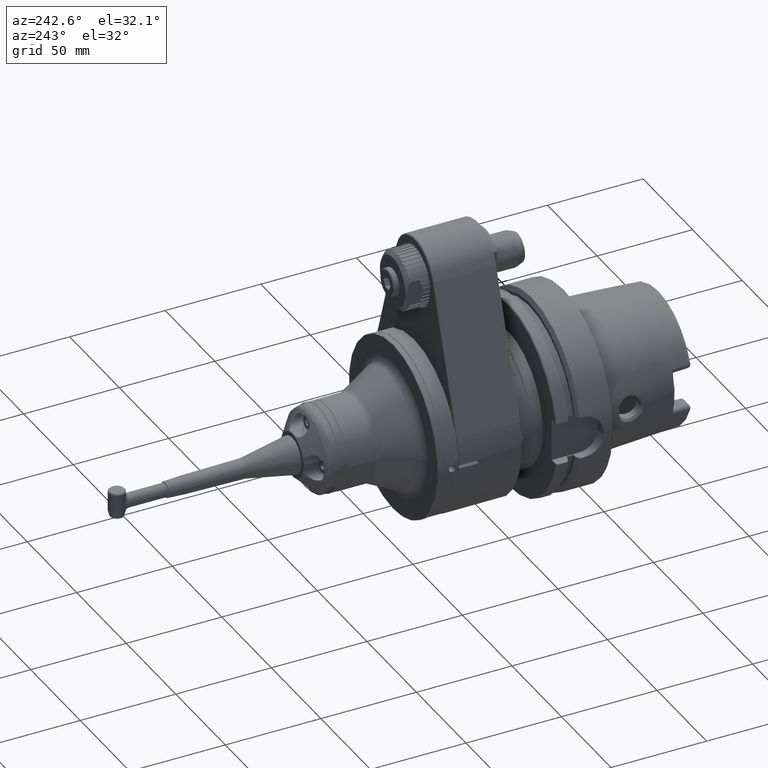
[diagram: clean part render]
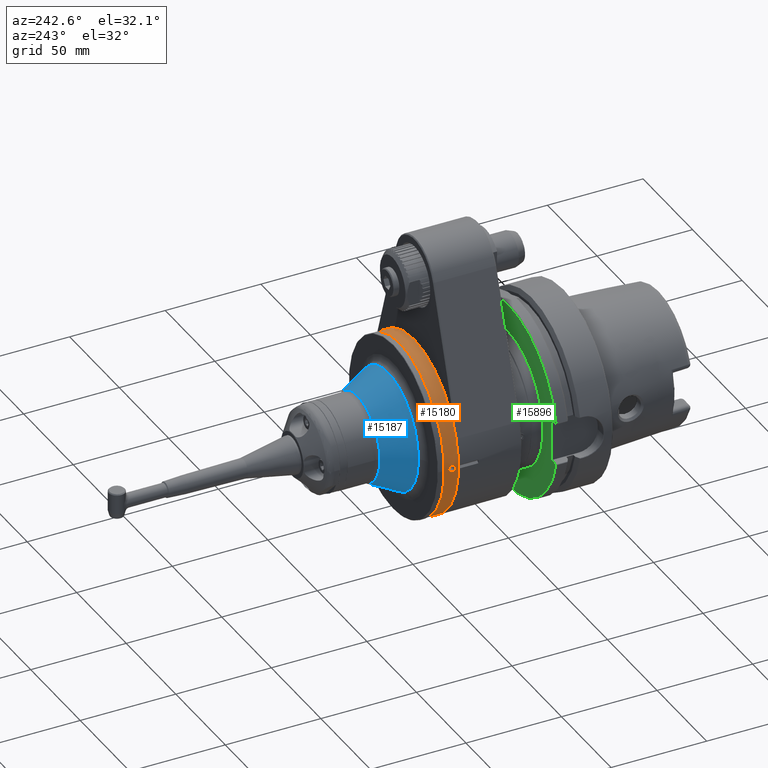
[diagram: same view with three faces highlighted in distinct colors, each labeled with its STEP entity id]
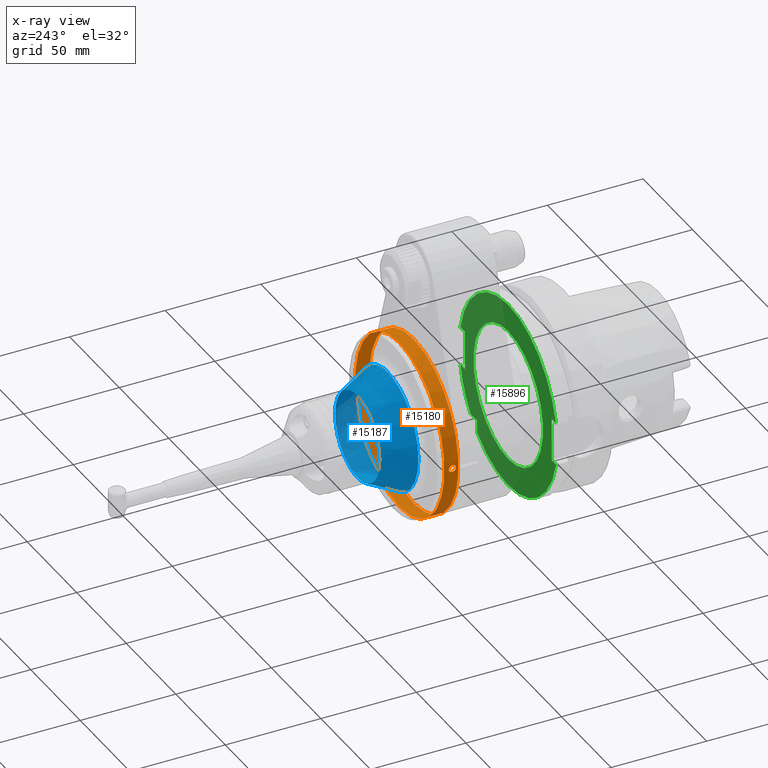
[diagram: x-ray of the same camera — body ghosted, the three highlighted faces saturated]
A machine part, auxiliary view with three faces highlighted in distinct colors.
The next image is the same camera in x-ray (body ghosted, the three faces saturated) — at least one of them is partly hidden behind the body in this view.
Their STEP definitions:

[orange] entity #15180 — the highlighted cylindrical surface (bore or boss wall) has radius 45 mm, axis along (0, -1, 0).
#96=B_SPLINE_CURVE_WITH_KNOTS('',3,(#22866,#22867,#22868,#22869,#22870,
#22871,#22872,#22873,#22874,#22875,#22876,#22877,#22878,#22879,#22880,#22881,
#22882,#22883,#22884,#22885),.UNSPECIFIED.,.F.,.F.,(4,2,2,2,2,2,2,2,2,4),
(2.95044138527654E-5,0.0363727603073256,0.0736012607345242,0.129053058891917,
0.175651368570769,0.221814558131218,0.268002092615884,0.31919449865272,
0.375343041731849,0.433055438257048),.UNSPECIFIED.);
#97=B_SPLINE_CURVE_WITH_KNOTS('',3,(#22886,#22887,#22888,#22889,#22890,
#22891,#22892,#22893,#22894,#22895,#22896,#22897,#22898,#22899,#22900,#22901,
#22902,#22903,#22904,#22905),.UNSPECIFIED.,.F.,.F.,(4,2,2,2,2,2,2,2,2,4),
(2.95044138332132E-5,0.0363727603072945,0.0736012607344489,0.12905305889174,
0.175651368570494,0.221814558130849,0.268002092615407,0.319194498652107,
0.375343041731019,0.433055438255951),.UNSPECIFIED.);
#683=LINE('',#22860,#1817);
#1817=VECTOR('',#18226,45.);
#2909=CYLINDRICAL_SURFACE('',#16234,45.);
#3129=FACE_BOUND('',#4223,.T.);
#3287=FACE_OUTER_BOUND('',#4222,.T.);
#4222=EDGE_LOOP('',(#10223,#10224,#10225,#10226,#10227,#10228));
#4223=EDGE_LOOP('',(#10229,#10230));
#5269=CIRCLE('',#16232,45.);
#5270=CIRCLE('',#16233,45.);
#5271=CIRCLE('',#16235,45.);
#5272=CIRCLE('',#16236,45.);
#6168=VERTEX_POINT('',#22853);
#6169=VERTEX_POINT('',#22854);
#6170=VERTEX_POINT('',#22859);
#6171=VERTEX_POINT('',#22861);
#6172=VERTEX_POINT('',#22864);
#6173=VERTEX_POINT('',#22865);
#7731=EDGE_CURVE('',#6168,#6169,#5269,.T.);
#7732=EDGE_CURVE('',#6169,#6168,#5270,.T.);
#7734=EDGE_CURVE('',#6169,#6170,#683,.T.);
#7735=EDGE_CURVE('',#6170,#6171,#5271,.T.);
#7736=EDGE_CURVE('',#6171,#6170,#5272,.T.);
#7737=EDGE_CURVE('',#6172,#6173,#96,.T.);
#7738=EDGE_CURVE('',#6173,#6172,#97,.T.);
#10223=ORIENTED_EDGE('',*,*,#7731,.F.);
#10224=ORIENTED_EDGE('',*,*,#7732,.F.);
#10225=ORIENTED_EDGE('',*,*,#7734,.T.);
#10226=ORIENTED_EDGE('',*,*,#7735,.T.);
#10227=ORIENTED_EDGE('',*,*,#7736,.T.);
#10228=ORIENTED_EDGE('',*,*,#7734,.F.);
#10229=ORIENTED_EDGE('',*,*,#7737,.T.);
#10230=ORIENTED_EDGE('',*,*,#7738,.T.);
#15180=ADVANCED_FACE('',(#3287,#3129),#2909,.T.);
#16232=AXIS2_PLACEMENT_3D('',#22855,#18219,#18220);
#16233=AXIS2_PLACEMENT_3D('',#22856,#18221,#18222);
#16234=AXIS2_PLACEMENT_3D('',#22858,#18224,#18225);
#16235=AXIS2_PLACEMENT_3D('',#22862,#18227,#18228);
#16236=AXIS2_PLACEMENT_3D('',#22863,#18229,#18230);
#18219=DIRECTION('center_axis',(0.,-1.,0.));
#18220=DIRECTION('ref_axis',(0.,0.,-1.));
#18221=DIRECTION('center_axis',(0.,-1.,0.));
#18222=DIRECTION('ref_axis',(0.,0.,-1.));
#18224=DIRECTION('center_axis',(0.,-1.,0.));
#18225=DIRECTION('ref_axis',(0.,0.,1.));
#18226=DIRECTION('',(0.,1.,0.));
#18227=DIRECTION('center_axis',(0.,-1.,0.));
#18228=DIRECTION('ref_axis',(0.,0.,1.));
#18229=DIRECTION('center_axis',(0.,-1.,0.));
#18230=DIRECTION('ref_axis',(0.,0.,1.));
#22853=CARTESIAN_POINT('',(0.,25.40000436251,45.));
#22854=CARTESIAN_POINT('',(5.51091059616309E-15,25.40000436251,-45.));
#22855=CARTESIAN_POINT('Origin',(0.,25.40000436251,2.285324009082E-14));
#22856=CARTESIAN_POINT('Origin',(0.,25.40000436251,2.285324009082E-14));
#22858=CARTESIAN_POINT('Origin',(0.,33.39,2.285324009082E-14));
#22859=CARTESIAN_POINT('',(0.,32.79999652175,-45.));
#22860=CARTESIAN_POINT('',(5.51091059616309E-15,33.39,-45.));
#22861=CARTESIAN_POINT('',(-2.30625731836163E-13,32.7999965217445,44.9999999999973));
#22862=CARTESIAN_POINT('Origin',(0.,32.79999652175,2.285324009082E-14));
#22863=CARTESIAN_POINT('Origin',(0.,32.79999652175,2.285324009082E-14));
#22864=CARTESIAN_POINT('',(-44.9616057546834,28.6000012088568,1.85849612628421));
#22865=CARTESIAN_POINT('',(-44.9616057546834,28.5999987911432,-1.85849612628396));
#22866=CARTESIAN_POINT('Ctrl Pts',(-44.9616193902987,28.6000010055328,1.8581662471156));
#22867=CARTESIAN_POINT('Ctrl Pts',(-44.9616183065794,28.4788571461133,1.85819246961983));
#22868=CARTESIAN_POINT('Ctrl Pts',(-44.9621128180054,28.357910122801,1.8463403070735));
#22869=CARTESIAN_POINT('Ctrl Pts',(-44.9640558950522,28.1173510030197,1.79840672446395));
#22870=CARTESIAN_POINT('Ctrl Pts',(-44.9655233048224,27.9983136216868,1.761839820285));
#22871=CARTESIAN_POINT('Ctrl Pts',(-44.9701331910523,27.7127279171925,1.64084404420344));
#22872=CARTESIAN_POINT('Ctrl Pts',(-44.9748134819407,27.4960023159045,1.51946440518002));
#22873=CARTESIAN_POINT('Ctrl Pts',(-44.9858998960152,27.1186636861944,1.13969617247094));
#22874=CARTESIAN_POINT('Ctrl Pts',(-44.9908807596391,26.9820676284236,0.933911503033297));
#22875=CARTESIAN_POINT('Ctrl Pts',(-44.9979803129359,26.7969939828815,0.482028945882868));
#22876=CARTESIAN_POINT('Ctrl Pts',(-45.0000068144269,26.7498159148289,0.241481260534326));
#22877=CARTESIAN_POINT('Ctrl Pts',(-44.9999931463284,26.750191216134,-0.244142368664631));
#22878=CARTESIAN_POINT('Ctrl Pts',(-44.9979492724902,26.7977415342449,-0.48498597046985));
#22879=CARTESIAN_POINT('Ctrl Pts',(-44.9904625932125,26.9929804489567,-0.959425541010766));
#22880=CARTESIAN_POINT('Ctrl Pts',(-44.9853002360304,27.1389237217762,-1.16048496923002));
#22881=CARTESIAN_POINT('Ctrl Pts',(-44.9758135876521,27.4622423655959,-1.48493072648699));
#22882=CARTESIAN_POINT('Ctrl Pts',(-44.9709247249889,27.6626247777941,-1.62004838024217));
#22883=CARTESIAN_POINT('Ctrl Pts',(-44.963755269687,28.1089184450778,-1.80826621264984));
#22884=CARTESIAN_POINT('Ctrl Pts',(-44.9616021690613,28.3555298477576,-1.85858291454913));
#22885=CARTESIAN_POINT('Ctrl Pts',(-44.9615921190682,28.5999985878191,-1.85882600545231));
#22886=CARTESIAN_POINT('Ctrl Pts',(-44.9616193902987,28.5999989944672,-1.8581662471156));
#22887=CARTESIAN_POINT('Ctrl Pts',(-44.9616183065794,28.7211428538867,-1.85819246961983));
#22888=CARTESIAN_POINT('Ctrl Pts',(-44.9621128180054,28.842089877199,-1.8463403070735));
#22889=CARTESIAN_POINT('Ctrl Pts',(-44.9640558950522,29.0826489969802,-1.79840672446397));
#22890=CARTESIAN_POINT('Ctrl Pts',(-44.9655233048224,29.2016863783131,-1.76183982028504));
#22891=CARTESIAN_POINT('Ctrl Pts',(-44.9701331910523,29.4872720828071,-1.64084404420362));
#22892=CARTESIAN_POINT('Ctrl Pts',(-44.9748134819407,29.7039976840952,-1.51946440518027));
#22893=CARTESIAN_POINT('Ctrl Pts',(-44.9858998960152,30.0813363138055,-1.13969617247106));
#22894=CARTESIAN_POINT('Ctrl Pts',(-44.9908807596391,30.2179323715763,-0.93391150303332));
#22895=CARTESIAN_POINT('Ctrl Pts',(-44.9979803129359,30.4030060171184,-0.482028945883162));
#22896=CARTESIAN_POINT('Ctrl Pts',(-45.0000068144269,30.4501840851711,-0.241481260534538));
#22897=CARTESIAN_POINT('Ctrl Pts',(-44.9999931463284,30.449808783866,0.24414236866464));
#22898=CARTESIAN_POINT('Ctrl Pts',(-44.9979492724902,30.4022584657551,0.484985970469927));
#22899=CARTESIAN_POINT('Ctrl Pts',(-44.9904625932125,30.2070195510433,0.959425541010762));
#22900=CARTESIAN_POINT('Ctrl Pts',(-44.9853002360304,30.0610762782238,1.16048496923006));
#22901=CARTESIAN_POINT('Ctrl Pts',(-44.9758135876521,29.7377576344039,1.48493072648715));
#22902=CARTESIAN_POINT('Ctrl Pts',(-44.9709247249889,29.5373752222057,1.62004838024229));
#22903=CARTESIAN_POINT('Ctrl Pts',(-44.963755269687,29.0910815549222,1.80826621264983));
#22904=CARTESIAN_POINT('Ctrl Pts',(-44.9616021690614,28.8444701522444,1.85858291454834));
#22905=CARTESIAN_POINT('Ctrl Pts',(-44.9615921190682,28.6000014121809,1.85882600545281));

[blue] entity #15187 — the highlighted conical surface has half-angle 27 deg.
#442=CONICAL_SURFACE('',#16253,26.6212712994,0.471238898038469);
#688=LINE('',#22937,#1822);
#1822=VECTOR('',#18269,26.6212712994);
#3294=FACE_OUTER_BOUND('',#4231,.T.);
#4231=EDGE_LOOP('',(#10259,#10260,#10261,#10262,#10263,#10264));
#5280=CIRCLE('',#16250,30.69757521975);
#5281=CIRCLE('',#16251,30.69757521975);
#5283=CIRCLE('',#16254,22.54496737906);
#5284=CIRCLE('',#16255,22.54496737906);
#6181=VERTEX_POINT('',#22930);
#6182=VERTEX_POINT('',#22931);
#6183=VERTEX_POINT('',#22936);
#6184=VERTEX_POINT('',#22938);
#7750=EDGE_CURVE('',#6181,#6182,#5280,.T.);
#7751=EDGE_CURVE('',#6182,#6181,#5281,.T.);
#7753=EDGE_CURVE('',#6181,#6183,#688,.T.);
#7754=EDGE_CURVE('',#6184,#6183,#5283,.T.);
#7755=EDGE_CURVE('',#6183,#6184,#5284,.T.);
#10259=ORIENTED_EDGE('',*,*,#7750,.T.);
#10260=ORIENTED_EDGE('',*,*,#7751,.T.);
#10261=ORIENTED_EDGE('',*,*,#7753,.T.);
#10262=ORIENTED_EDGE('',*,*,#7754,.F.);
#10263=ORIENTED_EDGE('',*,*,#7755,.F.);
#10264=ORIENTED_EDGE('',*,*,#7753,.F.);
#15187=ADVANCED_FACE('',(#3294),#442,.T.);
#16250=AXIS2_PLACEMENT_3D('',#22932,#18261,#18262);
#16251=AXIS2_PLACEMENT_3D('',#22933,#18263,#18264);
#16253=AXIS2_PLACEMENT_3D('',#22935,#18267,#18268);
#16254=AXIS2_PLACEMENT_3D('',#22939,#18270,#18271);
#16255=AXIS2_PLACEMENT_3D('',#22940,#18272,#18273);
#18261=DIRECTION('center_axis',(0.,1.,0.));
#18262=DIRECTION('ref_axis',(1.,0.,0.));
#18263=DIRECTION('center_axis',(0.,1.,0.));
#18264=DIRECTION('ref_axis',(1.,0.,0.));
#18267=DIRECTION('center_axis',(0.,-1.,0.));
#18268=DIRECTION('ref_axis',(-1.,0.,0.));
#18269=DIRECTION('',(-0.453990499739547,0.891006524188368,-5.55978012349343E-17));
#18270=DIRECTION('center_axis',(0.,1.,0.));
#18271=DIRECTION('ref_axis',(-1.,0.,0.));
#18272=DIRECTION('center_axis',(0.,1.,0.));
#18273=DIRECTION('ref_axis',(-1.,0.,0.));
#22930=CARTESIAN_POINT('',(30.69757521975,38.9300475013,0.));
#22931=CARTESIAN_POINT('',(-30.6975678488535,38.9300475013,-0.0212729227967865));
#22932=CARTESIAN_POINT('Origin',(0.,38.9300475013,0.));
#22933=CARTESIAN_POINT('Origin',(0.,38.9300475013,0.));
#22935=CARTESIAN_POINT('Origin',(0.,46.930244399,0.));
#22936=CARTESIAN_POINT('',(22.5449673790564,54.9304412966982,2.76096221376429E-15));
#22937=CARTESIAN_POINT('',(26.6212712994,46.930244399,3.26016546860435E-15));
#22938=CARTESIAN_POINT('',(-22.5449613105033,54.9304412967,-0.0165417891486448));
#22939=CARTESIAN_POINT('Origin',(0.,54.9304412967,0.));
#22940=CARTESIAN_POINT('Origin',(0.,54.9304412967,0.));

[green] entity #15896 — the highlighted planar face has unit normal (0, 1, 0).
#1605=LINE('',#37131,#2739);
#1606=LINE('',#37133,#2740);
#1607=LINE('',#37135,#2741);
#1608=LINE('',#37139,#2742);
#1609=LINE('',#37141,#2743);
#1610=LINE('',#37143,#2744);
#1611=LINE('',#37147,#2745);
#1612=LINE('',#37149,#2746);
#1613=LINE('',#37153,#2747);
#1614=LINE('',#37154,#2748);
#2739=VECTOR('',#21898,22.4);
#2740=VECTOR('',#21899,4.369681036897);
#2741=VECTOR('',#21900,10.);
#2742=VECTOR('',#21903,4.637691932078);
#2743=VECTOR('',#21904,20.4);
#2744=VECTOR('',#21905,4.637691932078);
#2745=VECTOR('',#21908,6.693737031212);
#2746=VECTOR('',#21909,6.693737031212);
#2747=VECTOR('',#21912,10.);
#2748=VECTOR('',#21913,4.369681177404);
#3216=FACE_BOUND('',#5026,.T.);
#4003=FACE_OUTER_BOUND('',#5025,.T.);
#5025=EDGE_LOOP('',(#13985,#13986,#13987,#13988,#13989,#13990,#13991,#13992,
#13993,#13994,#13995,#13996,#13997));
#5026=EDGE_LOOP('',(#13998));
#5950=CIRCLE('',#17608,35.);
#5951=CIRCLE('',#17610,49.49999999704);
#5952=CIRCLE('',#17611,49.49999999704);
#5953=CIRCLE('',#17612,49.49999999704);
#7363=VERTEX_POINT('',#37125);
#7364=VERTEX_POINT('',#37129);
#7365=VERTEX_POINT('',#37130);
#7366=VERTEX_POINT('',#37132);
#7367=VERTEX_POINT('',#37134);
#7368=VERTEX_POINT('',#37136);
#7369=VERTEX_POINT('',#37138);
#7370=VERTEX_POINT('',#37140);
#7371=VERTEX_POINT('',#37142);
#7372=VERTEX_POINT('',#37144);
#7373=VERTEX_POINT('',#37146);
#7374=VERTEX_POINT('',#37148);
#7375=VERTEX_POINT('',#37150);
#7376=VERTEX_POINT('',#37152);
#9599=EDGE_CURVE('',#7363,#7363,#5950,.T.);
#9600=EDGE_CURVE('',#7364,#7365,#1605,.T.);
#9601=EDGE_CURVE('',#7365,#7366,#1606,.T.);
#9602=EDGE_CURVE('',#7366,#7367,#1607,.T.);
#9603=EDGE_CURVE('',#7367,#7368,#5951,.T.);
#9604=EDGE_CURVE('',#7368,#7369,#1608,.T.);
#9605=EDGE_CURVE('',#7369,#7370,#1609,.T.);
#9606=EDGE_CURVE('',#7370,#7371,#1610,.T.);
#9607=EDGE_CURVE('',#7371,#7372,#5952,.T.);
#9608=EDGE_CURVE('',#7373,#7372,#1611,.T.);
#9609=EDGE_CURVE('',#7374,#7373,#1612,.T.);
#9610=EDGE_CURVE('',#7374,#7375,#5953,.T.);
#9611=EDGE_CURVE('',#7375,#7376,#1613,.T.);
#9612=EDGE_CURVE('',#7376,#7364,#1614,.T.);
#13985=ORIENTED_EDGE('',*,*,#9600,.T.);
#13986=ORIENTED_EDGE('',*,*,#9601,.T.);
#13987=ORIENTED_EDGE('',*,*,#9602,.T.);
#13988=ORIENTED_EDGE('',*,*,#9603,.T.);
#13989=ORIENTED_EDGE('',*,*,#9604,.T.);
#13990=ORIENTED_EDGE('',*,*,#9605,.T.);
#13991=ORIENTED_EDGE('',*,*,#9606,.T.);
#13992=ORIENTED_EDGE('',*,*,#9607,.T.);
#13993=ORIENTED_EDGE('',*,*,#9608,.F.);
#13994=ORIENTED_EDGE('',*,*,#9609,.F.);
#13995=ORIENTED_EDGE('',*,*,#9610,.T.);
#13996=ORIENTED_EDGE('',*,*,#9611,.T.);
#13997=ORIENTED_EDGE('',*,*,#9612,.T.);
#13998=ORIENTED_EDGE('',*,*,#9599,.F.);
#15061=PLANE('',#17609);
#15896=ADVANCED_FACE('',(#4003,#3216),#15061,.T.);
#17608=AXIS2_PLACEMENT_3D('',#37127,#21894,#21895);
#17609=AXIS2_PLACEMENT_3D('',#37128,#21896,#21897);
#17610=AXIS2_PLACEMENT_3D('',#37137,#21901,#21902);
#17611=AXIS2_PLACEMENT_3D('',#37145,#21906,#21907);
#17612=AXIS2_PLACEMENT_3D('',#37151,#21910,#21911);
#21894=DIRECTION('center_axis',(0.,1.,0.));
#21895=DIRECTION('ref_axis',(0.,0.,1.));
#21896=DIRECTION('center_axis',(0.,1.,0.));
#21897=DIRECTION('ref_axis',(0.,0.,1.));
#21898=DIRECTION('',(0.,0.,1.));
#21899=DIRECTION('',(-1.,0.,0.));
#21900=DIRECTION('',(-0.773291430147922,4.09001158997024E-8,0.634050758267648));
#21901=DIRECTION('center_axis',(0.,1.,0.));
#21902=DIRECTION('ref_axis',(-0.973915519377734,0.,0.226910910084108));
#21903=DIRECTION('',(-1.,0.,0.));
#21904=DIRECTION('',(0.,0.,-1.));
#21905=DIRECTION('',(1.,0.,0.));
#21906=DIRECTION('center_axis',(0.,1.,0.));
#21907=DIRECTION('ref_axis',(0.978539231009605,0.,-0.206060606072901));
#21908=DIRECTION('',(1.,0.,0.));
#21909=DIRECTION('',(0.,0.,1.));
#21910=DIRECTION('center_axis',(0.,1.,0.));
#21911=DIRECTION('ref_axis',(0.636253253251184,0.,-0.771480263990781));
#21912=DIRECTION('',(0.773290963546885,-3.16136918439893E-7,0.634051327336068));
#21913=DIRECTION('',(1.,0.,0.));
#37125=CARTESIAN_POINT('',(0.,-24.,-35.));
#37127=CARTESIAN_POINT('Origin',(0.,-24.,2.542499836903E-14));
#37128=CARTESIAN_POINT('Origin',(0.,-24.,2.285324009082E-14));
#37129=CARTESIAN_POINT('',(-43.8,-24.,-11.2));
#37130=CARTESIAN_POINT('',(-43.8,-24.,11.2));
#37131=CARTESIAN_POINT('',(-43.8,-24.,-11.2));
#37132=CARTESIAN_POINT('',(-48.1696810369,-24.,11.2));
#37133=CARTESIAN_POINT('',(-43.8,-24.,11.2));
#37134=CARTESIAN_POINT('',(-48.2088182078024,-23.9999999979305,11.2320900378012));
#37135=CARTESIAN_POINT('',(-48.1696810369,-24.,11.2));
#37136=CARTESIAN_POINT('',(48.43769193208,-24.,10.2));
#37137=CARTESIAN_POINT('Origin',(-2.658399645492E-13,-24.,-2.877587066187E-13));
#37138=CARTESIAN_POINT('',(43.8,-24.,10.2));
#37139=CARTESIAN_POINT('',(48.43769193208,-24.,10.2));
#37140=CARTESIAN_POINT('',(43.8,-24.,-10.2));
#37141=CARTESIAN_POINT('',(43.8,-24.,10.2));
#37142=CARTESIAN_POINT('',(48.43769193208,-24.,-10.2));
#37143=CARTESIAN_POINT('',(43.8,-24.,-10.2));
#37144=CARTESIAN_POINT('',(38.18827306526,-24.,-31.49453603405));
#37145=CARTESIAN_POINT('Origin',(-2.658399645492E-13,-24.,-2.877587066187E-13));
#37146=CARTESIAN_POINT('',(31.49453603405,-24.,-31.49453603405));
#37147=CARTESIAN_POINT('',(31.49453603405,-24.,-31.49453603405));
#37148=CARTESIAN_POINT('',(31.49453603405,-24.,-38.18827306526));
#37149=CARTESIAN_POINT('',(31.49453603405,-24.,-38.18827306526));
#37150=CARTESIAN_POINT('',(-48.2088182232669,-23.9999999871366,-11.2320899641305));
#37151=CARTESIAN_POINT('Origin',(-2.658399645492E-13,-24.,-2.877587066187E-13));
#37152=CARTESIAN_POINT('',(-48.1696811774,-24.,-11.2));
#37153=CARTESIAN_POINT('',(-48.20881820681,-23.999999984,-11.2320899721));
#37154=CARTESIAN_POINT('',(-48.1696811774,-24.,-11.2));